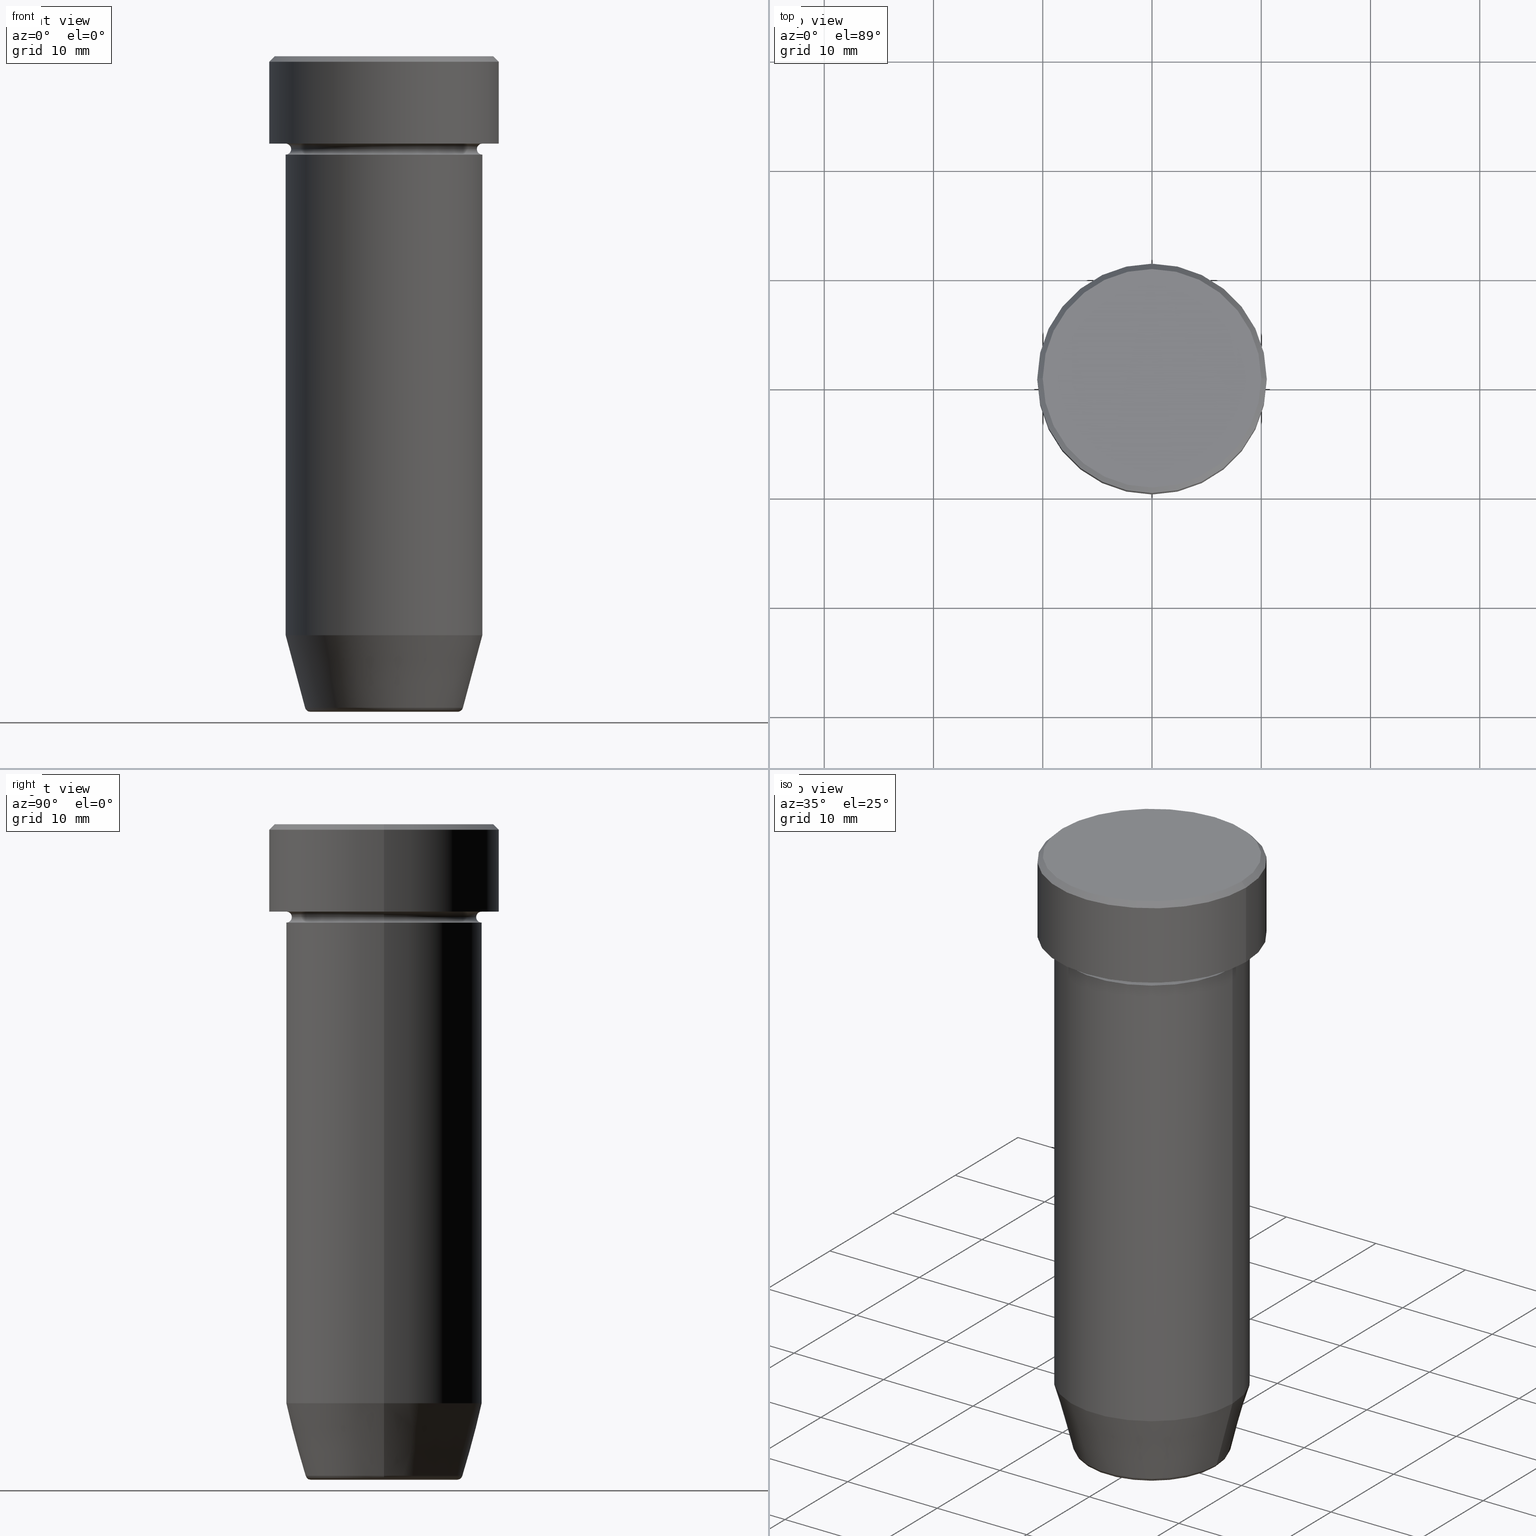
[diagram: canonical four-view strip — front | top / right | iso, engineering-drawing reading convention]
A machine part, canonical four-view strip (front | top / right | iso — engineering-drawing reading convention). The complete STEP part file that produces these views, byte-faithful:
ISO-10303-21;
HEADER;
FILE_DESCRIPTION (( 'STEP AP203' ),
    '1' );
FILE_NAME ('c2fe.STEP',
    '2024-01-02T22:09:21',
    ( '' ),
    ( '' ),
    'SwSTEP 2.0',
    'SolidWorks 2019',
    '' );
FILE_SCHEMA (( 'CONFIG_CONTROL_DESIGN' ));
ENDSEC;

DATA;
#1 = EDGE_CURVE ( 'NONE', #466, #143, #106, .T. ) ;
#2 = DIRECTION ( 'NONE',  ( 0.000000000000000000, 0.000000000000000000, -1.000000000000000000 ) ) ;
#3 = DIRECTION ( 'NONE',  ( 0.000000000000000000, 0.000000000000000000, -1.000000000000000000 ) ) ;
#4 = ADVANCED_FACE ( 'NONE', ( #585 ), #445, .T. ) ;
#5 = DIRECTION ( 'NONE',  ( -0.000000000000000000, -0.000000000000000000, 1.000000000000000000 ) ) ;
#6 = ORIENTED_EDGE ( 'NONE', *, *, #340, .T. ) ;
#7 = CONICAL_SURFACE ( 'NONE', #240, 10.00000000000000178, 0.7853981633974447263 ) ;
#8 = VECTOR ( 'NONE', #532, 1000.000000000000000 ) ;
#9 = DIRECTION ( 'NONE',  ( 1.000000000000000000, 0.000000000000000000, 0.000000000000000000 ) ) ;
#10 = VERTEX_POINT ( 'NONE', #301 ) ;
#11 = CARTESIAN_POINT ( 'NONE',  ( -10.50000000000000000, 1.285879139104720831E-15, -0.5000000000000023315 ) ) ;
#12 = ORIENTED_EDGE ( 'NONE', *, *, #402, .F. ) ;
#13 = APPROVAL ( #444, 'NEUR�EN�' ) ;
#14 = ORIENTED_EDGE ( 'NONE', *, *, #476, .T. ) ;
#15 = CARTESIAN_POINT ( 'NONE',  ( -10.50000000000000000, 1.285879139104720831E-15, -8.000000000000000000 ) ) ;
#16 = VERTEX_POINT ( 'NONE', #124 ) ;
#17 = EDGE_CURVE ( 'NONE', #148, #454, #276, .T. ) ;
#18 = DIRECTION ( 'NONE',  ( -0.000000000000000000, -0.000000000000000000, 1.000000000000000000 ) ) ;
#19 = TOROIDAL_SURFACE ( 'NONE', #509, 9.000000000000000000, 0.5000000000000000000 ) ;
#20 = AXIS2_PLACEMENT_3D ( 'NONE', #62, #170, #396 ) ;
#21 = DIRECTION ( 'NONE',  ( -0.000000000000000000, -0.000000000000000000, 1.000000000000000000 ) ) ;
#22 = EDGE_CURVE ( 'NONE', #390, #506, #323, .T. ) ;
#23 = CARTESIAN_POINT ( 'NONE',  ( 0.000000000000000000, 0.000000000000000000, 0.000000000000000000 ) ) ;
#24 = DATE_AND_TIME ( #310, #234 ) ;
#25 = ORIENTED_EDGE ( 'NONE', *, *, #219, .T. ) ;
#26 = DIRECTION ( 'NONE',  ( 1.000000000000000000, 0.000000000000000000, 0.000000000000000000 ) ) ;
#27 = DATE_AND_TIME ( #395, #326 ) ;
#28 = CARTESIAN_POINT ( 'NONE',  ( 9.000000000000000000, 0.000000000000000000, -8.500000000000000000 ) ) ;
#29 = DIRECTION ( 'NONE',  ( 1.000000000000000000, 0.000000000000000000, 0.000000000000000000 ) ) ;
#30 = PERSON_AND_ORGANIZATION ( #407, #408 ) ;
#31 = DIRECTION ( 'NONE',  ( -0.000000000000000000, -0.000000000000000000, 1.000000000000000000 ) ) ;
#32 = AXIS2_PLACEMENT_3D ( 'NONE', #294, #516, #479 ) ;
#33 = DIRECTION ( 'NONE',  ( 0.000000000000000000, -0.000000000000000000, 1.000000000000000000 ) ) ;
#34 = DIRECTION ( 'NONE',  ( -0.000000000000000000, -0.000000000000000000, 1.000000000000000000 ) ) ;
#35 = EDGE_CURVE ( 'NONE', #339, #432, #76, .T. ) ;
#36 = AXIS2_PLACEMENT_3D ( 'NONE', #393, #2, #555 ) ;
#37 = ADVANCED_FACE ( 'NONE', ( #259 ), #353, .F. ) ;
#38 = FACE_OUTER_BOUND ( 'NONE', #386, .T. ) ;
#39 = DIRECTION ( 'NONE',  ( 0.000000000000000000, -0.000000000000000000, 1.000000000000000000 ) ) ;
#40 = DIRECTION ( 'NONE',  ( 1.000000000000000000, 0.000000000000000000, 0.000000000000000000 ) ) ;
#41 = ORIENTED_EDGE ( 'NONE', *, *, #153, .T. ) ;
#42 = LINE ( 'NONE', #129, #481 ) ;
#43 = APPLICATION_CONTEXT ( 'configuration controlled 3d designs of mechanical parts and assemblies' ) ;
#44 = ORIENTED_EDGE ( 'NONE', *, *, #392, .F. ) ;
#45 = CIRCLE ( 'NONE', #222, 9.000000000000000000 ) ;
#46 = CYLINDRICAL_SURFACE ( 'NONE', #162, 9.000000000000000000 ) ;
#47 = AXIS2_PLACEMENT_3D ( 'NONE', #447, #463, #502 ) ;
#48 = EDGE_LOOP ( 'NONE', ( #311, #203, #193, #74 ) ) ;
#49 = EDGE_CURVE ( 'NONE', #16, #506, #66, .T. ) ;
#50 = CARTESIAN_POINT ( 'NONE',  ( 0.000000000000000000, 0.000000000000000000, -0.5000000000000023315 ) ) ;
#51 = FACE_OUTER_BOUND ( 'NONE', #157, .T. ) ;
#52 = DIRECTION ( 'NONE',  ( 1.000000000000000000, 0.000000000000000000, 0.000000000000000000 ) ) ;
#53 = ORIENTED_EDGE ( 'NONE', *, *, #319, .T. ) ;
#54 = ORIENTED_EDGE ( 'NONE', *, *, #125, .T. ) ;
#55 = CARTESIAN_POINT ( 'NONE',  ( 0.000000000000000000, 0.000000000000000000, -8.500000000000000000 ) ) ;
#56 = AXIS2_PLACEMENT_3D ( 'NONE', #489, #449, #350 ) ;
#57 = CIRCLE ( 'NONE', #397, 0.5000000000000004441 ) ;
#58 = CIRCLE ( 'NONE', #501, 9.000000000000000000 ) ;
#59 = DIRECTION ( 'NONE',  ( 1.000000000000000000, 0.000000000000000000, 0.000000000000000000 ) ) ;
#60 = ORIENTED_EDGE ( 'NONE', *, *, #125, .F. ) ;
#61 = EDGE_LOOP ( 'NONE', ( #424, #540, #41, #216 ) ) ;
#62 = CARTESIAN_POINT ( 'NONE',  ( 0.000000000000000000, 0.000000000000000000, -0.5000000000000023315 ) ) ;
#63 = ORIENTED_EDGE ( 'NONE', *, *, #85, .T. ) ;
#64 = DIRECTION ( 'NONE',  ( -1.000000000000000000, 0.000000000000000000, 0.000000000000000000 ) ) ;
#65 = CIRCLE ( 'NONE', #450, 9.000000000000000000 ) ;
#66 = CIRCLE ( 'NONE', #202, 9.000000000000000000 ) ;
#67 = CARTESIAN_POINT ( 'NONE',  ( 0.000000000000000000, 0.000000000000000000, 0.000000000000000000 ) ) ;
#68 = VECTOR ( 'NONE', #180, 1000.000000000000000 ) ;
#69 = CARTESIAN_POINT ( 'NONE',  ( -7.124355652982136355, 8.724819346411924116E-16, -60.00000000000000000 ) ) ;
#70 = CARTESIAN_POINT ( 'NONE',  ( 0.000000000000000000, 0.000000000000000000, -22.00000000000000000 ) ) ;
#71 = PERSON_AND_ORGANIZATION_ROLE ( 'classification_officer' ) ;
#72 = ORIENTED_EDGE ( 'NONE', *, *, #542, .F. ) ;
#73 = PLANE ( 'NONE',  #519 ) ;
#74 = ORIENTED_EDGE ( 'NONE', *, *, #22, .F. ) ;
#75 = AXIS2_PLACEMENT_3D ( 'NONE', #258, #575, #64 ) ;
#76 = CIRCLE ( 'NONE', #459, 9.000000000000000000 ) ;
#77 = EDGE_CURVE ( 'NONE', #242, #382, #571, .T. ) ;
#78 = CARTESIAN_POINT ( 'NONE',  ( 0.000000000000000000, 0.000000000000000000, -22.00000000000000000 ) ) ;
#79 = APPROVAL_PERSON_ORGANIZATION ( #348, #13, #440 ) ;
#80 = CARTESIAN_POINT ( 'NONE',  ( -9.000000000000000000, 1.102182119232617714E-15, -22.00000000000000000 ) ) ;
#81 = SECURITY_CLASSIFICATION_LEVEL ( 'unclassified' ) ;
#82 = DIRECTION ( 'NONE',  ( -0.000000000000000000, -0.000000000000000000, 1.000000000000000000 ) ) ;
#83 = DIRECTION ( 'NONE',  ( 1.000000000000000000, 0.000000000000000000, 0.000000000000000000 ) ) ;
#84 = ORIENTED_EDGE ( 'NONE', *, *, #176, .F. ) ;
#85 = EDGE_CURVE ( 'NONE', #474, #336, #137, .T. ) ;
#86 = ORIENTED_EDGE ( 'NONE', *, *, #558, .F. ) ;
#87 = LOCAL_TIME ( 23, 9, 21.00000000000000000, #591 ) ;
#88 = DIRECTION ( 'NONE',  ( -0.000000000000000000, -0.000000000000000000, 1.000000000000000000 ) ) ;
#89 = FACE_OUTER_BOUND ( 'NONE', #521, .T. ) ;
#90 = DIRECTION ( 'NONE',  ( -1.000000000000000000, 0.000000000000000000, 0.000000000000000000 ) ) ;
#91 = EDGE_LOOP ( 'NONE', ( #527, #379, #14, #525 ) ) ;
#92 = FACE_OUTER_BOUND ( 'NONE', #280, .T. ) ;
#93 = EDGE_CURVE ( 'NONE', #252, #462, #580, .T. ) ;
#94 = EDGE_LOOP ( 'NONE', ( #109, #25, #245, #421 ) ) ;
#95 = AXIS2_PLACEMENT_3D ( 'NONE', #150, #98, #394 ) ;
#96 = FACE_OUTER_BOUND ( 'NONE', #207, .T. ) ;
#97 = VERTEX_POINT ( 'NONE', #114 ) ;
#98 = DIRECTION ( 'NONE',  ( -0.000000000000000000, -0.000000000000000000, 1.000000000000000000 ) ) ;
#99 = ORIENTED_EDGE ( 'NONE', *, *, #578, .T. ) ;
#100 = LINE ( 'NONE', #475, #8 ) ;
#101 = EDGE_CURVE ( 'NONE', #292, #148, #212, .T. ) ;
#102 = DIRECTION ( 'NONE',  ( 0.000000000000000000, 0.000000000000000000, 1.000000000000000000 ) ) ;
#103 = EDGE_LOOP ( 'NONE', ( #171, #535, #295, #429 ) ) ;
#104 = ORIENTED_EDGE ( 'NONE', *, *, #402, .T. ) ;
#105 = CARTESIAN_POINT ( 'NONE',  ( 0.000000000000000000, 0.000000000000000000, -8.000000000000000000 ) ) ;
#106 = CIRCLE ( 'NONE', #20, 10.50000000000000000 ) ;
#107 = AXIS2_PLACEMENT_3D ( 'NONE', #420, #549, #29 ) ;
#108 = DIRECTION ( 'NONE',  ( -0.000000000000000000, -0.000000000000000000, 1.000000000000000000 ) ) ;
#109 = ORIENTED_EDGE ( 'NONE', *, *, #319, .F. ) ;
#110 = DIRECTION ( 'NONE',  ( -0.000000000000000000, -0.000000000000000000, 1.000000000000000000 ) ) ;
#111 = PERSON_AND_ORGANIZATION ( #407, #408 ) ;
#112 = DIRECTION ( 'NONE',  ( -0.000000000000000000, -0.000000000000000000, 1.000000000000000000 ) ) ;
#113 = CARTESIAN_POINT ( 'NONE',  ( -6.740692158992655614, 8.254967076548017297E-16, -59.50000000000000000 ) ) ;
#114 = CARTESIAN_POINT ( 'NONE',  ( 6.740692158992655614, 0.000000000000000000, -60.00000000000000000 ) ) ;
#115 = PRODUCT_DEFINITION ( 'NEZN�M�', '', #572, #337 ) ;
#116 = ORIENTED_EDGE ( 'NONE', *, *, #588, .F. ) ;
#117 = AXIS2_PLACEMENT_3D ( 'NONE', #256, #18, #486 ) ;
#118 = AXIS2_PLACEMENT_3D ( 'NONE', #597, #128, #456 ) ;
#119 = CC_DESIGN_APPROVAL ( #227, ( #460 ) ) ;
#120 = PERSON_AND_ORGANIZATION ( #407, #408 ) ;
#121 = DIRECTION ( 'NONE',  ( -0.000000000000000000, -0.000000000000000000, 1.000000000000000000 ) ) ;
#122 = CARTESIAN_POINT ( 'NONE',  ( -10.50000000000000000, 1.285879139104720831E-15, 0.000000000000000000 ) ) ;
#123 = DATE_AND_TIME ( #357, #87 ) ;
#124 = CARTESIAN_POINT ( 'NONE',  ( -9.000000000000000000, 1.102182119232617714E-15, -9.000000000000001776 ) ) ;
#125 = EDGE_CURVE ( 'NONE', #97, #10, #277, .T. ) ;
#126 = DIRECTION ( 'NONE',  ( -0.000000000000000000, -0.000000000000000000, 1.000000000000000000 ) ) ;
#127 = DATE_TIME_ROLE ( 'creation_date' ) ;
#128 = DIRECTION ( 'NONE',  ( 1.224646799147353207E-16, 1.000000000000000000, 0.000000000000000000 ) ) ;
#129 = CARTESIAN_POINT ( 'NONE',  ( 9.000000000000000000, 0.000000000000000000, 0.000000000000000000 ) ) ;
#130 = CARTESIAN_POINT ( 'NONE',  ( 10.50000000000000000, 0.000000000000000000, -8.000000000000000000 ) ) ;
#131 = VECTOR ( 'NONE', #559, 1000.000000000000000 ) ;
#132 = EDGE_CURVE ( 'NONE', #382, #242, #593, .T. ) ;
#133 = CARTESIAN_POINT ( 'NONE',  ( 0.000000000000000000, 0.000000000000000000, -8.000000000000000000 ) ) ;
#134 = CC_DESIGN_PERSON_AND_ORGANIZATION_ASSIGNMENT ( #120, #400, ( #572 ) ) ;
#135 = DIRECTION ( 'NONE',  ( -0.000000000000000000, -0.000000000000000000, 1.000000000000000000 ) ) ;
#136 = CONICAL_SURFACE ( 'NONE', #233, 7.124355652982136355, 0.2617993877991500740 ) ;
#137 = CIRCLE ( 'NONE', #161, 9.000000000000000000 ) ;
#138 = VECTOR ( 'NONE', #126, 1000.000000000000000 ) ;
#139 = ORIENTED_EDGE ( 'NONE', *, *, #93, .T. ) ;
#140 = CARTESIAN_POINT ( 'NONE',  ( 0.000000000000000000, 0.000000000000000000, -22.00000000000000000 ) ) ;
#141 = DIRECTION ( 'NONE',  ( -0.000000000000000000, -0.000000000000000000, 1.000000000000000000 ) ) ;
#142 = ADVANCED_FACE ( 'NONE', ( #38 ), #136, .T. ) ;
#143 = VERTEX_POINT ( 'NONE', #316 ) ;
#144 = ORIENTED_EDGE ( 'NONE', *, *, #17, .F. ) ;
#145 = CARTESIAN_POINT ( 'NONE',  ( 0.000000000000000000, 0.000000000000000000, 0.000000000000000000 ) ) ;
#146 = ORIENTED_EDGE ( 'NONE', *, *, #237, .T. ) ;
#147 = VECTOR ( 'NONE', #215, 1000.000000000000000 ) ;
#148 = VERTEX_POINT ( 'NONE', #365 ) ;
#149 = AXIS2_PLACEMENT_3D ( 'NONE', #145, #141, #229 ) ;
#150 = CARTESIAN_POINT ( 'NONE',  ( 0.000000000000000000, 0.000000000000000000, -59.50000000000000000 ) ) ;
#151 = VERTEX_POINT ( 'NONE', #274 ) ;
#152 = APPLICATION_CONTEXT ( 'configuration controlled 3d designs of mechanical parts and assemblies' ) ;
#153 = EDGE_CURVE ( 'NONE', #242, #143, #410, .T. ) ;
#154 = ORIENTED_EDGE ( 'NONE', *, *, #185, .T. ) ;
#155 = PLANE ( 'NONE',  #32 ) ;
#156 = ORIENTED_EDGE ( 'NONE', *, *, #558, .T. ) ;
#157 = EDGE_LOOP ( 'NONE', ( #321, #195, #146, #144 ) ) ;
#158 = DIRECTION ( 'NONE',  ( 1.000000000000000000, 0.000000000000000000, 0.000000000000000000 ) ) ;
#159 = CYLINDRICAL_SURFACE ( 'NONE', #541, 9.000000000000000000 ) ;
#160 = APPLICATION_PROTOCOL_DEFINITION ( 'international standard', 'config_control_design', 1994, #43 ) ;
#161 = AXIS2_PLACEMENT_3D ( 'NONE', #253, #537, #434 ) ;
#162 = AXIS2_PLACEMENT_3D ( 'NONE', #399, #224, #318 ) ;
#163 = DIRECTION ( 'NONE',  ( 1.000000000000000000, 0.000000000000000000, 0.000000000000000000 ) ) ;
#164 = EDGE_CURVE ( 'NONE', #151, #474, #414, .T. ) ;
#165 = APPLICATION_PROTOCOL_DEFINITION ( 'international standard', 'config_control_design', 1994, #152 ) ;
#166 = DIRECTION ( 'NONE',  ( 1.000000000000000000, 0.000000000000000000, 0.000000000000000000 ) ) ;
#167 = CARTESIAN_POINT ( 'NONE',  ( 0.000000000000000000, 0.000000000000000000, 0.000000000000000000 ) ) ;
#168 = COORDINATED_UNIVERSAL_TIME_OFFSET ( 1, 0, .AHEAD. ) ;
#169 = CC_DESIGN_PERSON_AND_ORGANIZATION_ASSIGNMENT ( #30, #488, ( #115 ) ) ;
#170 = DIRECTION ( 'NONE',  ( 0.000000000000000000, 0.000000000000000000, -1.000000000000000000 ) ) ;
#171 = ORIENTED_EDGE ( 'NONE', *, *, #522, .T. ) ;
#172 = AXIS2_PLACEMENT_3D ( 'NONE', #113, #214, #217 ) ;
#173 = DIRECTION ( 'NONE',  ( 0.000000000000000000, 0.000000000000000000, -1.000000000000000000 ) ) ;
#174 = COORDINATED_UNIVERSAL_TIME_OFFSET ( 1, 0, .AHEAD. ) ;
#175 = ORIENTED_EDGE ( 'NONE', *, *, #504, .F. ) ;
#176 = EDGE_CURVE ( 'NONE', #506, #16, #45, .T. ) ;
#177 = CARTESIAN_POINT ( 'NONE',  ( 9.000000000000000000, 0.000000000000000000, 0.000000000000000000 ) ) ;
#178 = COORDINATED_UNIVERSAL_TIME_OFFSET ( 1, 0, .AHEAD. ) ;
#179 = DIRECTION ( 'NONE',  ( -0.000000000000000000, -0.000000000000000000, 1.000000000000000000 ) ) ;
#180 = DIRECTION ( 'NONE',  ( 0.7071067811865450192, 8.659560562354902043E-17, -0.7071067811865500152 ) ) ;
#181 = PERSON_AND_ORGANIZATION ( #407, #408 ) ;
#182 = LINE ( 'NONE', #363, #517 ) ;
#183 = AXIS2_PLACEMENT_3D ( 'NONE', #309, #431, #492 ) ;
#184 = CARTESIAN_POINT ( 'NONE',  ( 9.000000000000000000, 0.000000000000000000, -22.00000000000000000 ) ) ;
#185 = EDGE_CURVE ( 'NONE', #275, #220, #296, .T. ) ;
#186 = CARTESIAN_POINT ( 'NONE',  ( 0.000000000000000000, 0.000000000000000000, -9.000000000000001776 ) ) ;
#187 = ORIENTED_EDGE ( 'NONE', *, *, #511, .F. ) ;
#188 = CIRCLE ( 'NONE', #223, 9.000000000000000000 ) ;
#189 = ORIENTED_EDGE ( 'NONE', *, *, #522, .F. ) ;
#190 = EDGE_CURVE ( 'NONE', #148, #462, #510, .T. ) ;
#191 = DIRECTION ( 'NONE',  ( 1.000000000000000000, 0.000000000000000000, 0.000000000000000000 ) ) ;
#192 = DIRECTION ( 'NONE',  ( -1.000000000000000000, 0.000000000000000000, 0.000000000000000000 ) ) ;
#193 = ORIENTED_EDGE ( 'NONE', *, *, #49, .T. ) ;
#194 = CARTESIAN_POINT ( 'NONE',  ( 8.499999999999998224, 0.000000000000000000, -8.500000000000000000 ) ) ;
#195 = ORIENTED_EDGE ( 'NONE', *, *, #504, .T. ) ;
#196 = EDGE_LOOP ( 'NONE', ( #187, #513, #238, #116 ) ) ;
#197 = DIRECTION ( 'NONE',  ( 1.000000000000000000, 0.000000000000000000, 0.000000000000000000 ) ) ;
#198 = UNCERTAINTY_MEASURE_WITH_UNIT (LENGTH_MEASURE( 1.000000000000000082E-05 ), #248, 'distance_accuracy_value', 'NONE');
#199 = EDGE_CURVE ( 'NONE', #583, #292, #269, .T. ) ;
#200 =( NAMED_UNIT ( * ) PLANE_ANGLE_UNIT ( ) SI_UNIT ( $, .RADIAN. ) );
#201 = CIRCLE ( 'NONE', #172, 0.5000000000000004441 ) ;
#202 = AXIS2_PLACEMENT_3D ( 'NONE', #576, #112, #303 ) ;
#203 = ORIENTED_EDGE ( 'NONE', *, *, #209, .T. ) ;
#204 = DIRECTION ( 'NONE',  ( -1.000000000000000000, 0.000000000000000000, -0.000000000000000000 ) ) ;
#205 = ORIENTED_EDGE ( 'NONE', *, *, #22, .T. ) ;
#206 = DIRECTION ( 'NONE',  ( 0.000000000000000000, 0.000000000000000000, -1.000000000000000000 ) ) ;
#207 = EDGE_LOOP ( 'NONE', ( #524, #60, #477, #175 ) ) ;
#208 = AXIS2_PLACEMENT_3D ( 'NONE', #70, #312, #204 ) ;
#209 = EDGE_CURVE ( 'NONE', #151, #16, #354, .T. ) ;
#210 = CC_DESIGN_APPROVAL ( #508, ( #572 ) ) ;
#211 = FACE_OUTER_BOUND ( 'NONE', #249, .T. ) ;
#212 = LINE ( 'NONE', #69, #147 ) ;
#213 = CC_DESIGN_PERSON_AND_ORGANIZATION_ASSIGNMENT ( #181, #539, ( #572 ) ) ;
#214 = DIRECTION ( 'NONE',  ( 1.224646799147353207E-16, 1.000000000000000000, 0.000000000000000000 ) ) ;
#215 = DIRECTION ( 'NONE',  ( -0.2588190451025213501, 3.169619151431772337E-17, 0.9659258262890680902 ) ) ;
#216 = ORIENTED_EDGE ( 'NONE', *, *, #588, .T. ) ;
#217 = DIRECTION ( 'NONE',  ( -1.000000000000000000, 1.224646799147353454E-16, 0.000000000000000000 ) ) ;
#218 = COORDINATED_UNIVERSAL_TIME_OFFSET ( 1, 0, .AHEAD. ) ;
#219 = EDGE_CURVE ( 'NONE', #432, #339, #65, .T. ) ;
#220 = VERTEX_POINT ( 'NONE', #599 ) ;
#221 = EDGE_LOOP ( 'NONE', ( #565, #86, #205, #564 ) ) ;
#222 = AXIS2_PLACEMENT_3D ( 'NONE', #186, #556, #40 ) ;
#223 = AXIS2_PLACEMENT_3D ( 'NONE', #140, #327, #239 ) ;
#224 = DIRECTION ( 'NONE',  ( -0.000000000000000000, -0.000000000000000000, 1.000000000000000000 ) ) ;
#225 = DATE_AND_TIME ( #263, #241 ) ;
#226 = DIRECTION ( 'NONE',  ( 1.000000000000000000, 0.000000000000000000, 0.000000000000000000 ) ) ;
#227 = APPROVAL ( #496, 'NEUR�EN�' ) ;
#228 = EDGE_LOOP ( 'NONE', ( #413, #497 ) ) ;
#229 = DIRECTION ( 'NONE',  ( 1.000000000000000000, 0.000000000000000000, 0.000000000000000000 ) ) ;
#230 = APPROVAL_DATE_TIME ( #547, #227 ) ;
#231 = APPROVAL_STATUS ( 'not_yet_approved' ) ;
#232 = CC_DESIGN_PERSON_AND_ORGANIZATION_ASSIGNMENT ( #111, #389, ( #416 ) ) ;
#233 = AXIS2_PLACEMENT_3D ( 'NONE', #320, #82, #235 ) ;
#234 = LOCAL_TIME ( 23, 9, 21.00000000000000000, #174 ) ;
#235 = DIRECTION ( 'NONE',  ( 1.000000000000000000, 0.000000000000000000, 0.000000000000000000 ) ) ;
#236 = DIRECTION ( 'NONE',  ( 1.000000000000000000, 0.000000000000000000, 0.000000000000000000 ) ) ;
#237 = EDGE_CURVE ( 'NONE', #583, #454, #182, .T. ) ;
#238 = ORIENTED_EDGE ( 'NONE', *, *, #542, .T. ) ;
#239 = DIRECTION ( 'NONE',  ( 1.000000000000000000, 0.000000000000000000, 0.000000000000000000 ) ) ;
#240 = AXIS2_PLACEMENT_3D ( 'NONE', #425, #464, #192 ) ;
#241 = LOCAL_TIME ( 23, 9, 21.00000000000000000, #218 ) ;
#242 = VERTEX_POINT ( 'NONE', #130 ) ;
#243 = FACE_OUTER_BOUND ( 'NONE', #387, .T. ) ;
#244 = ORIENTED_EDGE ( 'NONE', *, *, #153, .F. ) ;
#245 = ORIENTED_EDGE ( 'NONE', *, *, #392, .T. ) ;
#246 = ADVANCED_FACE ( 'NONE', ( #503 ), #458, .F. ) ;
#247 = ORIENTED_EDGE ( 'NONE', *, *, #1, .T. ) ;
#248 =( LENGTH_UNIT ( ) NAMED_UNIT ( * ) SI_UNIT ( .MILLI., .METRE. ) );
#249 = EDGE_LOOP ( 'NONE', ( #139, #330 ) ) ;
#250 = CIRCLE ( 'NONE', #324, 6.740692158992655614 ) ;
#251 = CYLINDRICAL_SURFACE ( 'NONE', #331, 10.50000000000000000 ) ;
#252 = VERTEX_POINT ( 'NONE', #184 ) ;
#253 = CARTESIAN_POINT ( 'NONE',  ( 0.000000000000000000, 0.000000000000000000, -8.000000000000000000 ) ) ;
#254 = ADVANCED_FACE ( 'NONE', ( #378 ), #427, .T. ) ;
#255 = DIRECTION ( 'NONE',  ( 1.000000000000000000, 0.000000000000000000, 0.000000000000000000 ) ) ;
#256 = CARTESIAN_POINT ( 'NONE',  ( 0.000000000000000000, 0.000000000000000000, -22.00000000000000000 ) ) ;
#257 = AXIS2_PLACEMENT_3D ( 'NONE', #338, #512, #90 ) ;
#258 = CARTESIAN_POINT ( 'NONE',  ( 0.000000000000000000, 0.000000000000000000, -8.500000000000000000 ) ) ;
#259 = FACE_OUTER_BOUND ( 'NONE', #335, .T. ) ;
#260 = EDGE_LOOP ( 'NONE', ( #63, #99 ) ) ;
#261 = ADVANCED_FACE ( 'NONE', ( #283 ), #7, .T. ) ;
#262 = CARTESIAN_POINT ( 'NONE',  ( 0.000000000000000000, 0.000000000000000000, -60.00000000000000000 ) ) ;
#263 = CALENDAR_DATE ( 2024, 2, 1 ) ;
#264 = ORIENTED_EDGE ( 'NONE', *, *, #237, .F. ) ;
#265 = CARTESIAN_POINT ( 'NONE',  ( 0.000000000000000000, 0.000000000000000000, 0.000000000000000000 ) ) ;
#266 = PRODUCT_RELATED_PRODUCT_CATEGORY ( 'detail', '', ( #416 ) ) ;
#267 = DIRECTION ( 'NONE',  ( 1.000000000000000000, 0.000000000000000000, 0.000000000000000000 ) ) ;
#268 = MANIFOLD_SOLID_BREP ( 'Zaoblit4', #470 ) ;
#269 = CIRCLE ( 'NONE', #343, 7.223655072137191269 ) ;
#270 = AXIS2_PLACEMENT_3D ( 'NONE', #526, #102, #482 ) ;
#271 = APPROVAL_DATE_TIME ( #27, #508 ) ;
#272 = PLANE ( 'NONE',  #553 ) ;
#273 = ADVANCED_FACE ( 'NONE', ( #51 ), #490, .T. ) ;
#274 = CARTESIAN_POINT ( 'NONE',  ( -8.499999999999998224, 1.071565949253933927E-15, -8.500000000000000000 ) ) ;
#275 = VERTEX_POINT ( 'NONE', #472 ) ;
#276 = CIRCLE ( 'NONE', #507, 9.000000000000000000 ) ;
#277 = CIRCLE ( 'NONE', #36, 6.740692158992655614 ) ;
#278 = CARTESIAN_POINT ( 'NONE',  ( -9.000000000000000000, 0.000000000000000000, -8.500000000000000000 ) ) ;
#279 = ADVANCED_FACE ( 'NONE', ( #96 ), #579, .T. ) ;
#280 = EDGE_LOOP ( 'NONE', ( #368, #53, #84, #44 ) ) ;
#281 = FACE_OUTER_BOUND ( 'NONE', #385, .T. ) ;
#282 = CC_DESIGN_DATE_AND_TIME_ASSIGNMENT ( #123, #596, ( #460 ) ) ;
#283 = FACE_OUTER_BOUND ( 'NONE', #352, .T. ) ;
#284 = ORIENTED_EDGE ( 'NONE', *, *, #77, .T. ) ;
#285 = DIRECTION ( 'NONE',  ( -1.000000000000000000, 0.000000000000000000, 0.000000000000000000 ) ) ;
#286 = AXIS2_PLACEMENT_3D ( 'NONE', #520, #372, #9 ) ;
#287 = CC_DESIGN_APPROVAL ( #13, ( #115 ) ) ;
#288 = CARTESIAN_POINT ( 'NONE',  ( 0.000000000000000000, 0.000000000000000000, -53.00000000000000000 ) ) ;
#289 = ORIENTED_EDGE ( 'NONE', *, *, #85, .F. ) ;
#290 = ADVANCED_FACE ( 'NONE', ( #423 ), #307, .F. ) ;
#291 = ADVANCED_BREP_SHAPE_REPRESENTATION ( 'c2fe', ( #468, #268, #270 ), #381 ) ;
#292 = VERTEX_POINT ( 'NONE', #344 ) ;
#293 = ORIENTED_EDGE ( 'NONE', *, *, #384, .T. ) ;
#294 = CARTESIAN_POINT ( 'NONE',  ( 0.000000000000000000, 10.50000000000000000, -8.000000000000000000 ) ) ;
#295 = ORIENTED_EDGE ( 'NONE', *, *, #93, .F. ) ;
#296 = CIRCLE ( 'NONE', #528, 10.00000000000000178 ) ;
#297 = CIRCLE ( 'NONE', #581, 7.223655072137191269 ) ;
#298 = DIRECTION ( 'NONE',  ( -0.000000000000000000, -0.000000000000000000, 1.000000000000000000 ) ) ;
#299 = CYLINDRICAL_SURFACE ( 'NONE', #552, 9.000000000000000000 ) ;
#300 = ADVANCED_FACE ( 'NONE', ( #586 ), #251, .T. ) ;
#301 = CARTESIAN_POINT ( 'NONE',  ( -6.740692158992655614, 8.550696569392684695E-16, -60.00000000000000000 ) ) ;
#302 = FACE_OUTER_BOUND ( 'NONE', #94, .T. ) ;
#303 = DIRECTION ( 'NONE',  ( 1.000000000000000000, 0.000000000000000000, 0.000000000000000000 ) ) ;
#304 = FACE_OUTER_BOUND ( 'NONE', #221, .T. ) ;
#305 = CARTESIAN_POINT ( 'NONE',  ( 0.000000000000000000, 0.000000000000000000, -53.00000000000000000 ) ) ;
#306 = ADVANCED_FACE ( 'NONE', ( #302 ), #159, .T. ) ;
#307 = TOROIDAL_SURFACE ( 'NONE', #75, 9.000000000000000000, 0.5000000000000000000 ) ;
#308 = AXIS2_PLACEMENT_3D ( 'NONE', #105, #298, #483 ) ;
#309 = CARTESIAN_POINT ( 'NONE',  ( 0.000000000000000000, 0.000000000000000000, -59.50000000000000000 ) ) ;
#310 = CALENDAR_DATE ( 2024, 2, 1 ) ;
#311 = ORIENTED_EDGE ( 'NONE', *, *, #419, .F. ) ;
#312 = DIRECTION ( 'NONE',  ( 0.000000000000000000, 0.000000000000000000, -1.000000000000000000 ) ) ;
#313 = CARTESIAN_POINT ( 'NONE',  ( 0.000000000000000000, 0.000000000000000000, -22.00000000000000000 ) ) ;
#314 = DIRECTION ( 'NONE',  ( -0.000000000000000000, -0.000000000000000000, 1.000000000000000000 ) ) ;
#315 = APPROVAL_ROLE ( '' ) ;
#316 = CARTESIAN_POINT ( 'NONE',  ( 10.50000000000000000, 0.000000000000000000, -0.5000000000000023315 ) ) ;
#317 = AXIS2_PLACEMENT_3D ( 'NONE', #50, #206, #52 ) ;
#318 = DIRECTION ( 'NONE',  ( 1.000000000000000000, 0.000000000000000000, 0.000000000000000000 ) ) ;
#319 = EDGE_CURVE ( 'NONE', #432, #16, #435, .T. ) ;
#320 = CARTESIAN_POINT ( 'NONE',  ( 0.000000000000000000, 0.000000000000000000, -60.00000000000000000 ) ) ;
#321 = ORIENTED_EDGE ( 'NONE', *, *, #101, .F. ) ;
#322 = ADVANCED_FACE ( 'NONE', ( #211 ), #388, .F. ) ;
#323 = CIRCLE ( 'NONE', #529, 0.5000000000000004441 ) ;
#324 = AXIS2_PLACEMENT_3D ( 'NONE', #262, #443, #26 ) ;
#325 = DIRECTION ( 'NONE',  ( 1.000000000000000000, 0.000000000000000000, 0.000000000000000000 ) ) ;
#326 = LOCAL_TIME ( 23, 9, 21.00000000000000000, #168 ) ;
#327 = DIRECTION ( 'NONE',  ( -0.000000000000000000, -0.000000000000000000, 1.000000000000000000 ) ) ;
#328 = ORIENTED_EDGE ( 'NONE', *, *, #377, .F. ) ;
#329 = CARTESIAN_POINT ( 'NONE',  ( 0.000000000000000000, 0.000000000000000000, -59.62940952255126348 ) ) ;
#330 = ORIENTED_EDGE ( 'NONE', *, *, #487, .T. ) ;
#331 = AXIS2_PLACEMENT_3D ( 'NONE', #167, #533, #485 ) ;
#332 = CLOSED_SHELL ( 'NONE', ( #261, #37, #246, #448, #426, #4, #409, #300, #554, #306, #349, #290, #254 ) ) ;
#333 = ADVANCED_FACE ( 'NONE', ( #530 ), #299, .T. ) ;
#334 = CIRCLE ( 'NONE', #149, 10.00000000000000178 ) ;
#335 = EDGE_LOOP ( 'NONE', ( #411, #104, #289, #589 ) ) ;
#336 = VERTEX_POINT ( 'NONE', #347 ) ;
#337 = DESIGN_CONTEXT ( 'detailed design', #152, 'design' ) ;
#338 = CARTESIAN_POINT ( 'NONE',  ( 0.000000000000000000, 0.000000000000000000, 0.000000000000000000 ) ) ;
#339 = VERTEX_POINT ( 'NONE', #536 ) ;
#340 = EDGE_CURVE ( 'NONE', #10, #292, #201, .T. ) ;
#341 = CARTESIAN_POINT ( 'NONE',  ( -9.000000000000000000, 1.102182119232617714E-15, 0.000000000000000000 ) ) ;
#342 = DIRECTION ( 'NONE',  ( -1.000000000000000000, 0.000000000000000000, -0.000000000000000000 ) ) ;
#343 = AXIS2_PLACEMENT_3D ( 'NONE', #461, #499, #548 ) ;
#344 = CARTESIAN_POINT ( 'NONE',  ( -7.223655072137192157, 9.934123627281767082E-16, -59.62940952255126348 ) ) ;
#345 =( NAMED_UNIT ( * ) SI_UNIT ( $, .STERADIAN. ) SOLID_ANGLE_UNIT ( ) );
#346 = ORIENTED_EDGE ( 'NONE', *, *, #199, .T. ) ;
#347 = CARTESIAN_POINT ( 'NONE',  ( 9.000000000000000000, 1.102182119232617714E-15, -8.000000000000000000 ) ) ;
#348 = PERSON_AND_ORGANIZATION ( #407, #408 ) ;
#349 = ADVANCED_FACE ( 'NONE', ( #304 ), #19, .F. ) ;
#350 = DIRECTION ( 'NONE',  ( -1.000000000000000000, 0.000000000000000000, 0.000000000000000000 ) ) ;
#351 = CARTESIAN_POINT ( 'NONE',  ( 0.000000000000000000, 0.000000000000000000, -8.500000000000000000 ) ) ;
#352 = EDGE_LOOP ( 'NONE', ( #442, #422, #446, #72 ) ) ;
#353 = TOROIDAL_SURFACE ( 'NONE', #56, 9.000000000000000000, 0.5000000000000000000 ) ;
#354 = CIRCLE ( 'NONE', #118, 0.5000000000000004441 ) ;
#355 = AXIS2_PLACEMENT_3D ( 'NONE', #362, #376, #403 ) ;
#356 = LINE ( 'NONE', #122, #138 ) ;
#357 = CALENDAR_DATE ( 2024, 2, 1 ) ;
#358 = CARTESIAN_POINT ( 'NONE',  ( 9.000000000000000000, 0.000000000000000000, -9.000000000000001776 ) ) ;
#359 = CALENDAR_DATE ( 2024, 2, 1 ) ;
#360 = CARTESIAN_POINT ( 'NONE',  ( 0.000000000000000000, 0.000000000000000000, 0.000000000000000000 ) ) ;
#361 = ADVANCED_FACE ( 'NONE', ( #391 ), #364, .T. ) ;
#362 = CARTESIAN_POINT ( 'NONE',  ( 9.000000000000000000, 1.102182119232617714E-15, -8.500000000000000000 ) ) ;
#363 = CARTESIAN_POINT ( 'NONE',  ( 7.124355652982136355, 0.000000000000000000, -60.00000000000000000 ) ) ;
#364 = TOROIDAL_SURFACE ( 'NONE', #183, 6.740692158992655614, 0.5000000000000000000 ) ;
#365 = CARTESIAN_POINT ( 'NONE',  ( -9.000000000000000000, 1.102182119232617714E-15, -53.00000000000000000 ) ) ;
#366 = EDGE_CURVE ( 'NONE', #10, #97, #250, .T. ) ;
#367 = DIRECTION ( 'NONE',  ( -0.000000000000000000, -0.000000000000000000, 1.000000000000000000 ) ) ;
#368 = ORIENTED_EDGE ( 'NONE', *, *, #35, .T. ) ;
#369 = CARTESIAN_POINT ( 'NONE',  ( 9.000000000000000000, 0.000000000000000000, -53.00000000000000000 ) ) ;
#370 = AXIS2_PLACEMENT_3D ( 'NONE', #278, #401, #3 ) ;
#371 = CIRCLE ( 'NONE', #317, 10.50000000000000000 ) ;
#372 = DIRECTION ( 'NONE',  ( -0.000000000000000000, -0.000000000000000000, 1.000000000000000000 ) ) ;
#373 = CYLINDRICAL_SURFACE ( 'NONE', #107, 10.50000000000000000 ) ;
#374 = CARTESIAN_POINT ( 'NONE',  ( 0.000000000000000000, 0.000000000000000000, -60.00000000000000000 ) ) ;
#375 = ORIENTED_EDGE ( 'NONE', *, *, #219, .F. ) ;
#376 = DIRECTION ( 'NONE',  ( -1.224646799147353207E-16, 1.000000000000000000, 0.000000000000000000 ) ) ;
#377 = EDGE_CURVE ( 'NONE', #97, #583, #57, .T. ) ;
#378 = FACE_OUTER_BOUND ( 'NONE', #196, .T. ) ;
#379 = ORIENTED_EDGE ( 'NONE', *, *, #17, .T. ) ;
#380 = ORIENTED_EDGE ( 'NONE', *, *, #494, .T. ) ;
#381 =( GEOMETRIC_REPRESENTATION_CONTEXT ( 3 ) GLOBAL_UNCERTAINTY_ASSIGNED_CONTEXT ( ( #198 ) ) GLOBAL_UNIT_ASSIGNED_CONTEXT ( ( #248, #200, #345 ) ) REPRESENTATION_CONTEXT ( 'NONE', 'WORKASPACE' ) );
#382 = VERTEX_POINT ( 'NONE', #15 ) ;
#383 = EDGE_LOOP ( 'NONE', ( #577, #375 ) ) ;
#384 = EDGE_CURVE ( 'NONE', #382, #466, #356, .T. ) ;
#385 = EDGE_LOOP ( 'NONE', ( #284, #293, #247, #244 ) ) ;
#386 = EDGE_LOOP ( 'NONE', ( #346, #417, #189, #264 ) ) ;
#387 = EDGE_LOOP ( 'NONE', ( #54, #567 ) ) ;
#388 = PLANE ( 'NONE',  #208 ) ;
#389 = PERSON_AND_ORGANIZATION_ROLE ( 'design_owner' ) ;
#390 = VERTEX_POINT ( 'NONE', #194 ) ;
#391 = FACE_OUTER_BOUND ( 'NONE', #574, .T. ) ;
#392 = EDGE_CURVE ( 'NONE', #339, #506, #42, .T. ) ;
#393 = CARTESIAN_POINT ( 'NONE',  ( 0.000000000000000000, 0.000000000000000000, -60.00000000000000000 ) ) ;
#394 = DIRECTION ( 'NONE',  ( 1.000000000000000000, 0.000000000000000000, 0.000000000000000000 ) ) ;
#395 = CALENDAR_DATE ( 2024, 2, 1 ) ;
#396 = DIRECTION ( 'NONE',  ( 1.000000000000000000, 0.000000000000000000, 0.000000000000000000 ) ) ;
#397 = AXIS2_PLACEMENT_3D ( 'NONE', #543, #590, #173 ) ;
#398 = AXIS2_PLACEMENT_3D ( 'NONE', #566, #5, #191 ) ;
#399 = CARTESIAN_POINT ( 'NONE',  ( 0.000000000000000000, 0.000000000000000000, 0.000000000000000000 ) ) ;
#400 = PERSON_AND_ORGANIZATION_ROLE ( 'design_supplier' ) ;
#401 = DIRECTION ( 'NONE',  ( -0.000000000000000000, -1.000000000000000000, -0.000000000000000000 ) ) ;
#402 = EDGE_CURVE ( 'NONE', #390, #336, #480, .T. ) ;
#403 = DIRECTION ( 'NONE',  ( -1.000000000000000000, -1.224646799147353454E-16, 0.000000000000000000 ) ) ;
#404 = SHAPE_DEFINITION_REPRESENTATION ( #546, #291 ) ;
#405 = CARTESIAN_POINT ( 'NONE',  ( -9.000000000000000000, 1.102182119232617714E-15, 0.000000000000000000 ) ) ;
#406 = DIRECTION ( 'NONE',  ( 1.000000000000000000, 0.000000000000000000, 0.000000000000000000 ) ) ;
#407 = PERSON ( 'NEUR�EN�', 'NEUR�EN�', 'NEUR�EN�', ('NEUR�EN�'), ('NEUR�EN�'), ('NEUR�EN�') ) ;
#408 = ORGANIZATION ( 'NEUR�EN�', 'NEUR�EN�', '' ) ;
#409 = ADVANCED_FACE ( 'NONE', ( #89 ), #73, .T. ) ;
#410 = LINE ( 'NONE', #505, #557 ) ;
#411 = ORIENTED_EDGE ( 'NONE', *, *, #419, .T. ) ;
#412 = LINE ( 'NONE', #177, #131 ) ;
#413 = ORIENTED_EDGE ( 'NONE', *, *, #77, .F. ) ;
#414 = CIRCLE ( 'NONE', #370, 0.5000000000000004441 ) ;
#415 = APPROVAL_PERSON_ORGANIZATION ( #453, #227, #315 ) ;
#416 = PRODUCT ( 'c2fe', 'c2fe', '', ( #436 ) ) ;
#417 = ORIENTED_EDGE ( 'NONE', *, *, #101, .T. ) ;
#418 = ORIENTED_EDGE ( 'NONE', *, *, #164, .T. ) ;
#419 = EDGE_CURVE ( 'NONE', #151, #390, #491, .T. ) ;
#420 = CARTESIAN_POINT ( 'NONE',  ( 0.000000000000000000, 0.000000000000000000, 0.000000000000000000 ) ) ;
#421 = ORIENTED_EDGE ( 'NONE', *, *, #49, .F. ) ;
#422 = ORIENTED_EDGE ( 'NONE', *, *, #511, .T. ) ;
#423 = FACE_OUTER_BOUND ( 'NONE', #484, .T. ) ;
#424 = ORIENTED_EDGE ( 'NONE', *, *, #384, .F. ) ;
#425 = CARTESIAN_POINT ( 'NONE',  ( 0.000000000000000000, 0.000000000000000000, 0.000000000000000000 ) ) ;
#426 = ADVANCED_FACE ( 'NONE', ( #281 ), #373, .T. ) ;
#427 = CONICAL_SURFACE ( 'NONE', #257, 10.00000000000000178, 0.7853981633974447263 ) ;
#428 = CC_DESIGN_SECURITY_CLASSIFICATION ( #460, ( #572 ) ) ;
#429 = ORIENTED_EDGE ( 'NONE', *, *, #476, .F. ) ;
#430 = DIRECTION ( 'NONE',  ( -0.000000000000000000, -0.000000000000000000, 1.000000000000000000 ) ) ;
#431 = DIRECTION ( 'NONE',  ( -0.000000000000000000, -0.000000000000000000, 1.000000000000000000 ) ) ;
#432 = VERTEX_POINT ( 'NONE', #455 ) ;
#433 = CARTESIAN_POINT ( 'NONE',  ( 7.223655072137192157, 0.000000000000000000, -59.62940952255126348 ) ) ;
#434 = DIRECTION ( 'NONE',  ( -1.000000000000000000, 0.000000000000000000, 0.000000000000000000 ) ) ;
#435 = LINE ( 'NONE', #341, #469 ) ;
#436 = MECHANICAL_CONTEXT ( 'NONE', #43, 'mechanical' ) ;
#437 = AXIS2_PLACEMENT_3D ( 'NONE', #133, #179, #83 ) ;
#438 = ADVANCED_FACE ( 'NONE', ( #561 ), #46, .T. ) ;
#439 = DIRECTION ( 'NONE',  ( -0.000000000000000000, -0.000000000000000000, 1.000000000000000000 ) ) ;
#440 = APPROVAL_ROLE ( '' ) ;
#441 = CARTESIAN_POINT ( 'NONE',  ( 0.000000000000000000, 0.000000000000000000, -8.000000000000000000 ) ) ;
#442 = ORIENTED_EDGE ( 'NONE', *, *, #185, .F. ) ;
#443 = DIRECTION ( 'NONE',  ( 0.000000000000000000, 0.000000000000000000, -1.000000000000000000 ) ) ;
#444 = APPROVAL_STATUS ( 'not_yet_approved' ) ;
#445 = PLANE ( 'NONE',  #518 ) ;
#446 = ORIENTED_EDGE ( 'NONE', *, *, #1, .F. ) ;
#447 = CARTESIAN_POINT ( 'NONE',  ( 0.000000000000000000, 0.000000000000000000, 0.000000000000000000 ) ) ;
#448 = ADVANCED_FACE ( 'NONE', ( #92 ), #498, .T. ) ;
#449 = DIRECTION ( 'NONE',  ( 0.000000000000000000, 0.000000000000000000, -1.000000000000000000 ) ) ;
#450 = AXIS2_PLACEMENT_3D ( 'NONE', #78, #34, #406 ) ;
#451 = CIRCLE ( 'NONE', #308, 9.000000000000000000 ) ;
#452 = DIRECTION ( 'NONE',  ( 1.000000000000000000, 0.000000000000000000, 0.000000000000000000 ) ) ;
#453 = PERSON_AND_ORGANIZATION ( #407, #408 ) ;
#454 = VERTEX_POINT ( 'NONE', #369 ) ;
#455 = CARTESIAN_POINT ( 'NONE',  ( -9.000000000000000000, 1.102182119232617714E-15, -22.00000000000000000 ) ) ;
#456 = DIRECTION ( 'NONE',  ( -1.000000000000000000, 1.224646799147353454E-16, 0.000000000000000000 ) ) ;
#457 = AXIS2_PLACEMENT_3D ( 'NONE', #441, #31, #226 ) ;
#458 = TOROIDAL_SURFACE ( 'NONE', #286, 9.000000000000000000, 0.5000000000000000000 ) ;
#459 = AXIS2_PLACEMENT_3D ( 'NONE', #313, #21, #267 ) ;
#460 = SECURITY_CLASSIFICATION ( '', '', #81 ) ;
#461 = CARTESIAN_POINT ( 'NONE',  ( 0.000000000000000000, 0.000000000000000000, -59.62940952255126348 ) ) ;
#462 = VERTEX_POINT ( 'NONE', #80 ) ;
#463 = DIRECTION ( 'NONE',  ( -0.000000000000000000, -0.000000000000000000, 1.000000000000000000 ) ) ;
#464 = DIRECTION ( 'NONE',  ( 0.000000000000000000, 0.000000000000000000, -1.000000000000000000 ) ) ;
#465 = ADVANCED_FACE ( 'NONE', ( #243 ), #272, .F. ) ;
#466 = VERTEX_POINT ( 'NONE', #11 ) ;
#467 = LINE ( 'NONE', #598, #68 ) ;
#468 = MANIFOLD_SOLID_BREP ( 'Zkosen�1', #332 ) ;
#469 = VECTOR ( 'NONE', #439, 1000.000000000000000 ) ;
#470 = CLOSED_SHELL ( 'NONE', ( #361, #142, #438, #322, #333, #273, #465, #279 ) ) ;
#471 = APPROVAL_PERSON_ORGANIZATION ( #550, #508, #587 ) ;
#472 = CARTESIAN_POINT ( 'NONE',  ( 10.00000000000000178, 1.255262969126037241E-15, 0.000000000000000000 ) ) ;
#473 = FACE_OUTER_BOUND ( 'NONE', #228, .T. ) ;
#474 = VERTEX_POINT ( 'NONE', #595 ) ;
#475 = CARTESIAN_POINT ( 'NONE',  ( -10.00000000000000178, 0.000000000000000000, 0.000000000000000000 ) ) ;
#476 = EDGE_CURVE ( 'NONE', #454, #252, #412, .T. ) ;
#477 = ORIENTED_EDGE ( 'NONE', *, *, #377, .T. ) ;
#478 = ORIENTED_EDGE ( 'NONE', *, *, #366, .F. ) ;
#479 = DIRECTION ( 'NONE',  ( -1.000000000000000000, 0.000000000000000000, -0.000000000000000000 ) ) ;
#480 = CIRCLE ( 'NONE', #355, 0.5000000000000004441 ) ;
#481 = VECTOR ( 'NONE', #314, 1000.000000000000000 ) ;
#482 = DIRECTION ( 'NONE',  ( 1.000000000000000000, 0.000000000000000000, 0.000000000000000000 ) ) ;
#483 = DIRECTION ( 'NONE',  ( -1.000000000000000000, 0.000000000000000000, 0.000000000000000000 ) ) ;
#484 = EDGE_LOOP ( 'NONE', ( #12, #156, #418, #515 ) ) ;
#485 = DIRECTION ( 'NONE',  ( 1.000000000000000000, 0.000000000000000000, 0.000000000000000000 ) ) ;
#486 = DIRECTION ( 'NONE',  ( 1.000000000000000000, 0.000000000000000000, 0.000000000000000000 ) ) ;
#487 = EDGE_CURVE ( 'NONE', #462, #252, #188, .T. ) ;
#488 = PERSON_AND_ORGANIZATION_ROLE ( 'creator' ) ;
#489 = CARTESIAN_POINT ( 'NONE',  ( 0.000000000000000000, 0.000000000000000000, -8.500000000000000000 ) ) ;
#490 = CONICAL_SURFACE ( 'NONE', #570, 7.124355652982136355, 0.2617993877991500740 ) ;
#491 = CIRCLE ( 'NONE', #398, 8.499999999999998224 ) ;
#492 = DIRECTION ( 'NONE',  ( 1.000000000000000000, 0.000000000000000000, 0.000000000000000000 ) ) ;
#493 = PERSON_AND_ORGANIZATION ( #407, #408 ) ;
#494 = EDGE_CURVE ( 'NONE', #220, #275, #334, .T. ) ;
#495 = CARTESIAN_POINT ( 'NONE',  ( 0.000000000000000000, 1.224646799147354440E-15, -60.00000000000000000 ) ) ;
#496 = APPROVAL_STATUS ( 'not_yet_approved' ) ;
#497 = ORIENTED_EDGE ( 'NONE', *, *, #132, .F. ) ;
#498 = CYLINDRICAL_SURFACE ( 'NONE', #47, 9.000000000000000000 ) ;
#499 = DIRECTION ( 'NONE',  ( -0.000000000000000000, -0.000000000000000000, 1.000000000000000000 ) ) ;
#500 = VECTOR ( 'NONE', #88, 1000.000000000000000 ) ;
#501 = AXIS2_PLACEMENT_3D ( 'NONE', #288, #569, #197 ) ;
#502 = DIRECTION ( 'NONE',  ( 1.000000000000000000, 0.000000000000000000, 0.000000000000000000 ) ) ;
#503 = FACE_OUTER_BOUND ( 'NONE', #48, .T. ) ;
#504 = EDGE_CURVE ( 'NONE', #292, #583, #297, .T. ) ;
#505 = CARTESIAN_POINT ( 'NONE',  ( 10.50000000000000000, 0.000000000000000000, 0.000000000000000000 ) ) ;
#506 = VERTEX_POINT ( 'NONE', #358 ) ;
#507 = AXIS2_PLACEMENT_3D ( 'NONE', #305, #121, #166 ) ;
#508 = APPROVAL ( #231, 'NEUR�EN�' ) ;
#509 = AXIS2_PLACEMENT_3D ( 'NONE', #351, #538, #59 ) ;
#510 = LINE ( 'NONE', #405, #500 ) ;
#511 = EDGE_CURVE ( 'NONE', #275, #143, #467, .T. ) ;
#512 = DIRECTION ( 'NONE',  ( 0.000000000000000000, 0.000000000000000000, -1.000000000000000000 ) ) ;
#513 = ORIENTED_EDGE ( 'NONE', *, *, #494, .F. ) ;
#514 = DIRECTION ( 'NONE',  ( -0.000000000000000000, -0.000000000000000000, 1.000000000000000000 ) ) ;
#515 = ORIENTED_EDGE ( 'NONE', *, *, #578, .F. ) ;
#516 = DIRECTION ( 'NONE',  ( 0.000000000000000000, 0.000000000000000000, -1.000000000000000000 ) ) ;
#517 = VECTOR ( 'NONE', #551, 1000.000000000000000 ) ;
#518 = AXIS2_PLACEMENT_3D ( 'NONE', #534, #582, #342 ) ;
#519 = AXIS2_PLACEMENT_3D ( 'NONE', #265, #39, #452 ) ;
#520 = CARTESIAN_POINT ( 'NONE',  ( 0.000000000000000000, 0.000000000000000000, -8.500000000000000000 ) ) ;
#521 = EDGE_LOOP ( 'NONE', ( #380, #154 ) ) ;
#522 = EDGE_CURVE ( 'NONE', #454, #148, #58, .T. ) ;
#523 = DIRECTION ( 'NONE',  ( -0.000000000000000000, -0.000000000000000000, 1.000000000000000000 ) ) ;
#524 = ORIENTED_EDGE ( 'NONE', *, *, #340, .F. ) ;
#525 = ORIENTED_EDGE ( 'NONE', *, *, #487, .F. ) ;
#526 = CARTESIAN_POINT ( 'NONE',  ( 0.000000000000000000, 0.000000000000000000, 0.000000000000000000 ) ) ;
#527 = ORIENTED_EDGE ( 'NONE', *, *, #190, .F. ) ;
#528 = AXIS2_PLACEMENT_3D ( 'NONE', #360, #135, #325 ) ;
#529 = AXIS2_PLACEMENT_3D ( 'NONE', #28, #592, #545 ) ;
#530 = FACE_OUTER_BOUND ( 'NONE', #91, .T. ) ;
#531 = CIRCLE ( 'NONE', #560, 8.499999999999998224 ) ;
#532 = DIRECTION ( 'NONE',  ( -0.7071067811865450192, 0.000000000000000000, -0.7071067811865500152 ) ) ;
#533 = DIRECTION ( 'NONE',  ( -0.000000000000000000, -0.000000000000000000, 1.000000000000000000 ) ) ;
#534 = CARTESIAN_POINT ( 'NONE',  ( 0.000000000000000000, 9.000000000000000000, -22.00000000000000000 ) ) ;
#535 = ORIENTED_EDGE ( 'NONE', *, *, #190, .T. ) ;
#536 = CARTESIAN_POINT ( 'NONE',  ( 9.000000000000000000, 0.000000000000000000, -22.00000000000000000 ) ) ;
#537 = DIRECTION ( 'NONE',  ( -0.000000000000000000, -0.000000000000000000, 1.000000000000000000 ) ) ;
#538 = DIRECTION ( 'NONE',  ( -0.000000000000000000, -0.000000000000000000, 1.000000000000000000 ) ) ;
#539 = PERSON_AND_ORGANIZATION_ROLE ( 'creator' ) ;
#540 = ORIENTED_EDGE ( 'NONE', *, *, #132, .T. ) ;
#541 = AXIS2_PLACEMENT_3D ( 'NONE', #67, #110, #255 ) ;
#542 = EDGE_CURVE ( 'NONE', #220, #466, #100, .T. ) ;
#543 = CARTESIAN_POINT ( 'NONE',  ( 6.740692158992655614, 0.000000000000000000, -59.50000000000000000 ) ) ;
#544 = APPROVAL_DATE_TIME ( #24, #13 ) ;
#545 = DIRECTION ( 'NONE',  ( 0.000000000000000000, 0.000000000000000000, -1.000000000000000000 ) ) ;
#546 = PRODUCT_DEFINITION_SHAPE ( 'NONE', 'NONE',  #115 ) ;
#547 = DATE_AND_TIME ( #359, #594 ) ;
#548 = DIRECTION ( 'NONE',  ( -1.000000000000000000, 0.000000000000000000, 0.000000000000000000 ) ) ;
#549 = DIRECTION ( 'NONE',  ( -0.000000000000000000, -0.000000000000000000, 1.000000000000000000 ) ) ;
#550 = PERSON_AND_ORGANIZATION ( #407, #408 ) ;
#551 = DIRECTION ( 'NONE',  ( 0.2588190451025213501, 0.000000000000000000, 0.9659258262890680902 ) ) ;
#552 = AXIS2_PLACEMENT_3D ( 'NONE', #23, #108, #163 ) ;
#553 = AXIS2_PLACEMENT_3D ( 'NONE', #495, #33, #236 ) ;
#554 = ADVANCED_FACE ( 'NONE', ( #573, #473 ), #155, .T. ) ;
#555 = DIRECTION ( 'NONE',  ( 1.000000000000000000, 0.000000000000000000, 0.000000000000000000 ) ) ;
#556 = DIRECTION ( 'NONE',  ( -0.000000000000000000, -0.000000000000000000, 1.000000000000000000 ) ) ;
#557 = VECTOR ( 'NONE', #367, 1000.000000000000000 ) ;
#558 = EDGE_CURVE ( 'NONE', #390, #151, #531, .T. ) ;
#559 = DIRECTION ( 'NONE',  ( -0.000000000000000000, -0.000000000000000000, 1.000000000000000000 ) ) ;
#560 = AXIS2_PLACEMENT_3D ( 'NONE', #55, #430, #158 ) ;
#561 = FACE_OUTER_BOUND ( 'NONE', #103, .T. ) ;
#562 = CC_DESIGN_DATE_AND_TIME_ASSIGNMENT ( #225, #127, ( #115 ) ) ;
#563 = DIRECTION ( 'NONE',  ( 1.000000000000000000, 0.000000000000000000, 0.000000000000000000 ) ) ;
#564 = ORIENTED_EDGE ( 'NONE', *, *, #176, .T. ) ;
#565 = ORIENTED_EDGE ( 'NONE', *, *, #209, .F. ) ;
#566 = CARTESIAN_POINT ( 'NONE',  ( 0.000000000000000000, 0.000000000000000000, -8.500000000000000000 ) ) ;
#567 = ORIENTED_EDGE ( 'NONE', *, *, #366, .T. ) ;
#568 = ORIENTED_EDGE ( 'NONE', *, *, #199, .F. ) ;
#569 = DIRECTION ( 'NONE',  ( -0.000000000000000000, -0.000000000000000000, 1.000000000000000000 ) ) ;
#570 = AXIS2_PLACEMENT_3D ( 'NONE', #374, #523, #563 ) ;
#571 = CIRCLE ( 'NONE', #457, 10.50000000000000000 ) ;
#572 = PRODUCT_DEFINITION_FORMATION_WITH_SPECIFIED_SOURCE ( 'LIBOVOLN�', '', #416, .NOT_KNOWN. ) ;
#573 = FACE_BOUND ( 'NONE', #260, .T. ) ;
#574 = EDGE_LOOP ( 'NONE', ( #478, #6, #568, #328 ) ) ;
#575 = DIRECTION ( 'NONE',  ( 0.000000000000000000, 0.000000000000000000, -1.000000000000000000 ) ) ;
#576 = CARTESIAN_POINT ( 'NONE',  ( 0.000000000000000000, 0.000000000000000000, -9.000000000000001776 ) ) ;
#577 = ORIENTED_EDGE ( 'NONE', *, *, #35, .F. ) ;
#578 = EDGE_CURVE ( 'NONE', #336, #474, #451, .T. ) ;
#579 = TOROIDAL_SURFACE ( 'NONE', #95, 6.740692158992655614, 0.5000000000000000000 ) ;
#580 = CIRCLE ( 'NONE', #117, 9.000000000000000000 ) ;
#581 = AXIS2_PLACEMENT_3D ( 'NONE', #329, #514, #285 ) ;
#582 = DIRECTION ( 'NONE',  ( 0.000000000000000000, 0.000000000000000000, -1.000000000000000000 ) ) ;
#583 = VERTEX_POINT ( 'NONE', #433 ) ;
#584 = CC_DESIGN_PERSON_AND_ORGANIZATION_ASSIGNMENT ( #493, #71, ( #460 ) ) ;
#585 = FACE_OUTER_BOUND ( 'NONE', #383, .T. ) ;
#586 = FACE_OUTER_BOUND ( 'NONE', #61, .T. ) ;
#587 = APPROVAL_ROLE ( '' ) ;
#588 = EDGE_CURVE ( 'NONE', #143, #466, #371, .T. ) ;
#589 = ORIENTED_EDGE ( 'NONE', *, *, #164, .F. ) ;
#590 = DIRECTION ( 'NONE',  ( 0.000000000000000000, -1.000000000000000000, 0.000000000000000000 ) ) ;
#591 = COORDINATED_UNIVERSAL_TIME_OFFSET ( 1, 0, .AHEAD. ) ;
#592 = DIRECTION ( 'NONE',  ( 0.000000000000000000, -1.000000000000000000, 0.000000000000000000 ) ) ;
#593 = CIRCLE ( 'NONE', #437, 10.50000000000000000 ) ;
#594 = LOCAL_TIME ( 23, 9, 21.00000000000000000, #178 ) ;
#595 = CARTESIAN_POINT ( 'NONE',  ( -9.000000000000000000, 0.000000000000000000, -8.000000000000000000 ) ) ;
#596 = DATE_TIME_ROLE ( 'classification_date' ) ;
#597 = CARTESIAN_POINT ( 'NONE',  ( -9.000000000000000000, 1.102182119232617714E-15, -8.500000000000000000 ) ) ;
#598 = CARTESIAN_POINT ( 'NONE',  ( 10.00000000000000178, 1.224646799147353454E-15, 0.000000000000000000 ) ) ;
#599 = CARTESIAN_POINT ( 'NONE',  ( -10.00000000000000178, 0.000000000000000000, 0.000000000000000000 ) ) ;
ENDSEC;
END-ISO-10303-21;
